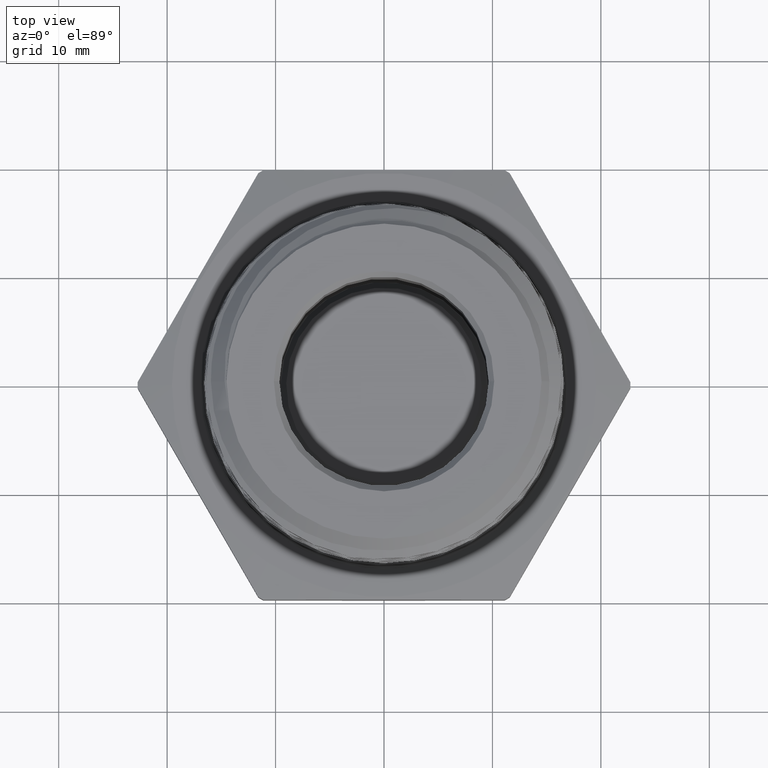
[diagram: clean part render]
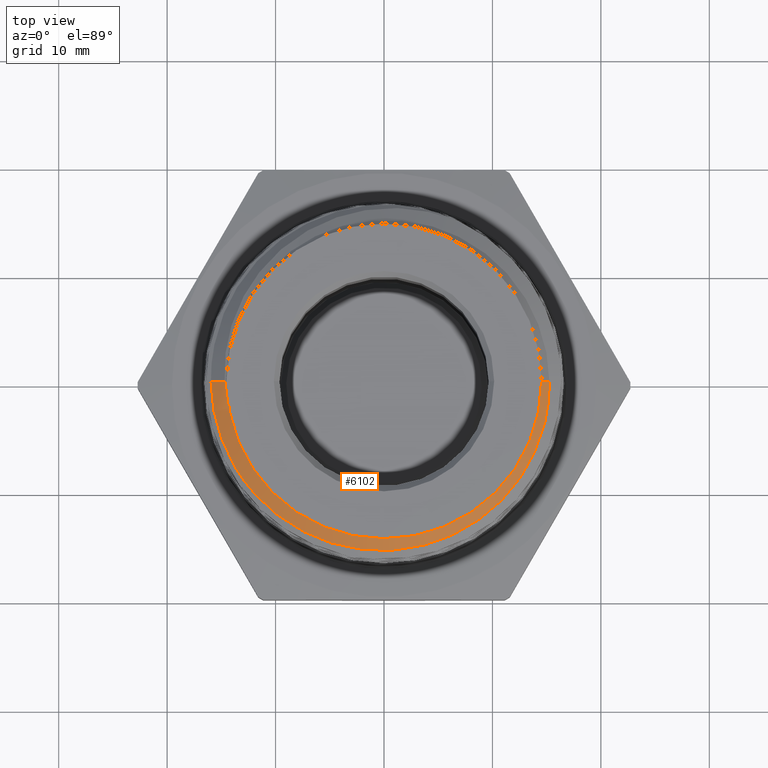
[diagram: same view with one face highlighted and labeled with its STEP entity id]
A machine part, top view. The second image highlights one B-rep face of the part: STEP entity #6102.
In plain terms, the highlighted conical surface has half-angle 45 deg.
Its self-contained STEP definition (entity closure, byte-faithful):
#11 = EDGE_CURVE ( 'NONE', #5243, #5248, #5406, .T. ) ;
#12 = EDGE_CURVE ( 'NONE', #5248, #4804, #5407, .T. ) ;
#13 = EDGE_CURVE ( 'NONE', #4804, #4803, #5626, .T. ) ;
#14 = EDGE_CURVE ( 'NONE', #4803, #5237, #5408, .T. ) ;
#76 = AXIS2_PLACEMENT_3D ( 'NONE', #3237, #3238, #3239 ) ;
#81 = AXIS2_PLACEMENT_3D ( 'NONE', #3249, #3250, #3248 ) ;
#3174 = CARTESIAN_POINT ( 'NONE',  ( 0.6592028279056124700, 8.072906331834918300E-017, 0.9027971720943887000 ) ) ;
#3178 = DIRECTION ( 'NONE',  ( 0.7071067811865516800, 8.659560562354983400E-017, -0.7071067811865433500 ) ) ;
#3232 = CARTESIAN_POINT ( 'NONE',  ( -0.6592028279056124700, 0.0000000000000000000, 0.9027971720943887000 ) ) ;
#3233 = DIRECTION ( 'NONE',  ( -0.7071067811865516800, 0.0000000000000000000, -0.7071067811865433500 ) ) ;
#3237 = CARTESIAN_POINT ( 'NONE',  ( 0.0000000000000000000, 0.0000000000000000000, 0.9900000000000001000 ) ) ;
#3238 = DIRECTION ( 'NONE',  ( -0.0000000000000000000, -0.0000000000000000000, -1.000000000000000000 ) ) ;
#3239 = DIRECTION ( 'NONE',  ( -1.000000000000000000, 0.0000000000000000000, 0.0000000000000000000 ) ) ;
#3248 = DIRECTION ( 'NONE',  ( -1.000000000000000000, 0.0000000000000000000, 0.0000000000000000000 ) ) ;
#3249 = CARTESIAN_POINT ( 'NONE',  ( 0.0000000000000000000, 0.0000000000000000000, 0.9027971720943887000 ) ) ;
#3250 = DIRECTION ( 'NONE',  ( -0.0000000000000000000, -0.0000000000000000000, -1.000000000000000000 ) ) ;
#4396 = CARTESIAN_POINT ( 'NONE',  ( -0.6283225450993632500, 4.889100257645358200E-013, 0.9336774549006376900 ) ) ;
#4397 = CARTESIAN_POINT ( 'NONE',  ( -0.5782752292204644800, 3.274842165956694300E-013, 0.9837247707795356800 ) ) ;
#4417 = CARTESIAN_POINT ( 'NONE',  ( -0.5719999999999999500, 0.0000000000000000000, 0.9900000000000001000 ) ) ;
#4522 = CARTESIAN_POINT ( 'NONE',  ( 0.6003489249177894600, 1.451294246634139900E-016, 0.9616510750822108200 ) ) ;
#4528 = CARTESIAN_POINT ( 'NONE',  ( -0.5731157824945870600, -6.829619984160658000E-017, 0.9888842175054131100 ) ) ;
#4532 = CARTESIAN_POINT ( 'NONE',  ( -0.5655597257416159500, -0.09229614794504099900, 0.9889424822193903000 ) ) ;
#4533 = CARTESIAN_POINT ( 'NONE',  ( 0.5719999999999999500, 7.351925070738971400E-017, 0.9900000000000001000 ) ) ;
#4803 = VERTEX_POINT ( 'NONE', #4396 ) ;
#4804 = VERTEX_POINT ( 'NONE', #4397 ) ;
#4828 = VERTEX_POINT ( 'NONE', #4417 ) ;
#4843 = CARTESIAN_POINT ( 'NONE',  ( 0.5401240285679728100, -0.2722155197896946600, 0.9574951859203398900 ) ) ;
#4846 = CARTESIAN_POINT ( 'NONE',  ( 0.5212408773791733500, -0.3079999082411661900, 0.9568993385211090900 ) ) ;
#4847 = CARTESIAN_POINT ( 'NONE',  ( -0.5655597257416159500, -0.09229614794504099900, 0.9889424822193903000 ) ) ;
#4848 = CARTESIAN_POINT ( 'NONE',  ( 0.4775363340974049200, -0.3757079295430516000, 0.9557143765499325200 ) ) ;
#4851 = CARTESIAN_POINT ( 'NONE',  ( 0.5999430441952849900, -0.04002742803732141400, 0.9610587070802366600 ) ) ;
#4869 = CARTESIAN_POINT ( 'NONE',  ( 0.3632812365888853400, -0.4887551486029252400, 0.9533561508519838900 ) ) ;
#4872 = CARTESIAN_POINT ( 'NONE',  ( 0.3471400199447933800, -0.5006996237951748500, 0.9530619889598985800 ) ) ;
#4873 = CARTESIAN_POINT ( 'NONE',  ( 0.2971599183001757400, -0.5340163965697475300, 0.9521850222044375700 ) ) ;
#4874 = CARTESIAN_POINT ( 'NONE',  ( 0.2617832771830060400, -0.5529020988062806100, 0.9516015158549676600 ) ) ;
#4875 = CARTESIAN_POINT ( 'NONE',  ( 0.1867641360576282100, -0.5837751543597535800, 0.9504205957239932900 ) ) ;
#4877 = CARTESIAN_POINT ( 'NONE',  ( 0.1482344998597494300, -0.5952914823425052800, 0.9498370897720902500 ) ) ;
#4878 = CARTESIAN_POINT ( 'NONE',  ( 0.08930889642799251500, -0.6068242229662997900, 0.9489655639770608900 ) ) ;
#4880 = CARTESIAN_POINT ( 'NONE',  ( 0.008969497855853884200, -0.6144711064270760300, 0.9477939790444797100 ) ) ;
#4882 = CARTESIAN_POINT ( 'NONE',  ( 0.06945847677377128800, -0.6097120950829849600, 0.9486752682305792400 ) ) ;
#4885 = CARTESIAN_POINT ( 'NONE',  ( 0.02933292363915321000, -0.6135398422460876000, 0.9480900178801529000 ) ) ;
#4887 = CARTESIAN_POINT ( 'NONE',  ( -0.05149637765103493700, -0.6142455323130711100, 0.9469188464212261500 ) ) ;
#4888 = CARTESIAN_POINT ( 'NONE',  ( -0.09131615818067843900, -0.6101697598103221800, 0.9463412480107562500 ) ) ;
#4889 = CARTESIAN_POINT ( 'NONE',  ( -0.2831535357971130500, -0.5514069717100009700, 0.9434394358872902900 ) ) ;
#4890 = CARTESIAN_POINT ( 'NONE',  ( -0.2276288004169043100, -0.5745728427568093100, 0.9443053165515037400 ) ) ;
#4891 = CARTESIAN_POINT ( 'NONE',  ( 0.5486010273752650600, -0.2539835445915285000, 0.9577902505720044000 ) ) ;
#4894 = CARTESIAN_POINT ( 'NONE',  ( -0.2086836797568140100, -0.5814206918121025400, 0.9445962341854583500 ) ) ;
#4895 = CARTESIAN_POINT ( 'NONE',  ( -0.1698892500044929500, -0.5933072999798104700, 0.9451820199975598000 ) ) ;
#4900 = CARTESIAN_POINT ( 'NONE',  ( -0.1503206900693071200, -0.5982578054319680500, 0.9454724724592916700 ) ) ;
#4901 = CARTESIAN_POINT ( 'NONE',  ( -0.3184373044608940800, -0.5324963997328851000, 0.9428650624131592600 ) ) ;
#4902 = CARTESIAN_POINT ( 'NONE',  ( -0.4735669051513986500, -0.4052717388882170500, 0.9399795319078251300 ) ) ;
#4903 = CARTESIAN_POINT ( 'NONE',  ( -0.4310758478532671900, -0.4476774968469090500, 0.9408388337412817400 ) ) ;
#4905 = CARTESIAN_POINT ( 'NONE',  ( -0.4162177585189503200, -0.4611418698714280800, 0.9411268315815684000 ) ) ;
#4909 = CARTESIAN_POINT ( 'NONE',  ( -0.3850861814524175800, -0.4867031851660277300, 0.9417050683721117600 ) ) ;
#4910 = CARTESIAN_POINT ( 'NONE',  ( -0.3687243612530555200, -0.4988518635010286700, 0.9419966363922802600 ) ) ;
#4911 = CARTESIAN_POINT ( 'NONE',  ( -0.4991859951343421400, -0.3742739245220261200, 0.9394059372103531500 ) ) ;
#4912 = CARTESIAN_POINT ( 'NONE',  ( -0.5444854407597128400, -0.3069957986819965000, 0.9382480025577218900 ) ) ;
#4913 = CARTESIAN_POINT ( 'NONE',  ( -0.6109628710005126100, -0.1393376951686272900, 0.9356739183522397900 ) ) ;
#4914 = CARTESIAN_POINT ( 'NONE',  ( -0.6058293096666629300, -0.1590543596057640600, 0.9359641750060452300 ) ) ;
#4915 = CARTESIAN_POINT ( 'NONE',  ( -0.5937880551024601300, -0.1975470601095116500, 0.9365381644293958600 ) ) ;
#4916 = CARTESIAN_POINT ( 'NONE',  ( -0.5868766730029038000, -0.2163859120718204500, 0.9368227733415663800 ) ) ;
#4917 = CARTESIAN_POINT ( 'NONE',  ( -0.5635223193491112300, -0.2717036580411111300, 0.9376778298871607500 ) ) ;
#4921 = CARTESIAN_POINT ( 'NONE',  ( -0.6283225450993632500, 4.889100257645358200E-013, 0.9336774549006376900 ) ) ;
#4923 = DIRECTION ( 'NONE',  ( -0.7071067811865516800, 0.0000000000000000000, -0.7071067811865433500 ) ) ;
#4924 = CARTESIAN_POINT ( 'NONE',  ( -0.5782752292204644800, 3.274842165956694300E-013, 0.9837247707795356800 ) ) ;
#4925 = CARTESIAN_POINT ( 'NONE',  ( -0.5765482343063121900, -0.03095631150653007200, 0.9854517656937050700 ) ) ;
#4926 = CARTESIAN_POINT ( 'NONE',  ( -0.5705498541855826800, -0.06177772625082907800, 0.9889490450932201200 ) ) ;
#4927 = CARTESIAN_POINT ( 'NONE',  ( -0.6592028279056124700, 0.0000000000000000000, 0.9027971720943887000 ) ) ;
#4928 = CARTESIAN_POINT ( 'NONE',  ( -0.5655597257416159500, -0.09229614794504099900, 0.9889424822193903000 ) ) ;
#4929 = CARTESIAN_POINT ( 'NONE',  ( 0.5825591086343406800, -0.1598555971027429700, 0.9592651233446652900 ) ) ;
#4930 = CARTESIAN_POINT ( 'NONE',  ( -0.5723509295740142300, -0.06172517563396518600, 0.9871798708326929800 ) ) ;
#4931 = CARTESIAN_POINT ( 'NONE',  ( -0.6233480830329842800, -0.08014557814971741400, 0.9348149424751737200 ) ) ;
#4932 = CARTESIAN_POINT ( 'NONE',  ( -0.6277517758621205000, -0.04027582084508028000, 0.9342482241379113100 ) ) ;
#4933 = CARTESIAN_POINT ( 'NONE',  ( -0.5731157824945870600, -6.829619984160658000E-017, 0.9888842175054131100 ) ) ;
#4938 = CARTESIAN_POINT ( 'NONE',  ( -0.5730966348480071000, -0.03089783283064946900, 0.9889033651519929500 ) ) ;
#4940 = CARTESIAN_POINT ( 'NONE',  ( 0.4095851848782859400, -0.4494567421635380400, 0.9542447393142987600 ) ) ;
#4941 = CARTESIAN_POINT ( 'NONE',  ( 0.3945002952905766200, -0.4631467876590779600, 0.9539474423492890800 ) ) ;
#4942 = CARTESIAN_POINT ( 'NONE',  ( 0.4522186291113682300, -0.4067070071224666000, 0.9551288779894889800 ) ) ;
#4943 = CARTESIAN_POINT ( 'NONE',  ( 0.6006457612034898900, -0.02001344833518966400, 0.9613542387965097200 ) ) ;
#4944 = CARTESIAN_POINT ( 'NONE',  ( 0.5965234745108127800, -0.08005636094699747400, 0.9604637476984313500 ) ) ;
#4950 = CARTESIAN_POINT ( 'NONE',  ( 0.6003489249177894600, 1.451294246634139900E-016, 0.9616510750822108200 ) ) ;
#4952 = CARTESIAN_POINT ( 'NONE',  ( 0.5937895112420769100, -0.1001582436748685600, 0.9601630132861210800 ) ) ;
#4953 = CARTESIAN_POINT ( 'NONE',  ( 0.5712131112562398600, -0.1982947693048954500, 0.9586758693884432900 ) ) ;
#4954 = CARTESIAN_POINT ( 'NONE',  ( 0.5108653987641950100, -0.3254682437435796300, 0.9565999273501776300 ) ) ;
#5237 = VERTEX_POINT ( 'NONE', #4522 ) ;
#5243 = VERTEX_POINT ( 'NONE', #4528 ) ;
#5248 = VERTEX_POINT ( 'NONE', #4532 ) ;
#5249 = VERTEX_POINT ( 'NONE', #4533 ) ;
#5406 = B_SPLINE_CURVE_WITH_KNOTS ( 'NONE', 3,
 ( #4933, #4938, #4926, #4928 ),
 .UNSPECIFIED., .F., .F.,
 ( 4, 4 ),
 ( 0.001243514361745723700, 0.003600094283176836000 ),
 .UNSPECIFIED. ) ;
#5407 = B_SPLINE_CURVE_WITH_KNOTS ( 'NONE', 3,
 ( #4847, #4930, #4925, #4924 ),
 .UNSPECIFIED., .F., .F.,
 ( 4, 4 ),
 ( 0.0000000000000000000, 0.002365730230864626400 ),
 .UNSPECIFIED. ) ;
#5408 = B_SPLINE_CURVE_WITH_KNOTS ( 'NONE', 3,
 ( #4921, #4932, #4931, #4913, #4914, #4915, #4916, #4917, #4912, #4911, #4902, #4903, #4905, #4909, #4910, #4901, #4889, #4890, #4894, #4895, #4900, #4888, #4887, #4880, #4885, #4882, #4878, #4877, #4875, #4874, #4873, #4872, #4869, #4941, #4940, #4942, #4848, #4954, #4846, #4843, #4891, #4953, #4929, #4952, #4944, #4851, #4943, #4950 ),
 .UNSPECIFIED., .F., .F.,
 ( 4, 2, 2, 2, 2, 2, 2, 2, 2, 2, 2, 2, 2, 2, 2, 2, 2, 2, 2, 2, 2, 2, 2, 4 ),
 ( 0.02647951359839895500, 0.02954731246858487800, 0.03108121190367784200, 0.03261511133877080500, 0.03568291020895673200, 0.03875070907914265900, 0.04028460851423562600, 0.04181850794932858600, 0.04488630681951451300, 0.04642020625460748000, 0.04795410568970043900, 0.05102190455988636600, 0.05255580399497932600, 0.05408970343007228600, 0.05715750230025820600, 0.06022530117044412600, 0.06175920060553709300, 0.06329310004063006000, 0.06636089891081598000, 0.06789479834590893300, 0.06942869778100191300, 0.07249649665118783300, 0.07403039608628080000, 0.07556429552137376700 ),
 .UNSPECIFIED. ) ;
#5626 = LINE ( 'NONE', #4927, #5627 ) ;
#5627 = VECTOR ( 'NONE', #4923, 39.37007874015748100 ) ;
#5726 = LINE ( 'NONE', #3174, #5729 ) ;
#5728 = LINE ( 'NONE', #3232, #5731 ) ;
#5729 = VECTOR ( 'NONE', #3178, 39.37007874015748100 ) ;
#5730 = CIRCLE ( 'NONE', #76, 0.5719999999999999500 ) ;
#5731 = VECTOR ( 'NONE', #3233, 39.37007874015748100 ) ;
#5741 = FACE_OUTER_BOUND ( 'NONE', #6068, .T. ) ;
#5746 = CONICAL_SURFACE ( 'NONE', #81, 0.6592028279056124700, 0.7853981633974541600 ) ;
#5822 = EDGE_CURVE ( 'NONE', #5249, #5237, #5726, .T. ) ;
#5825 = EDGE_CURVE ( 'NONE', #4828, #5243, #5728, .T. ) ;
#5826 = EDGE_CURVE ( 'NONE', #5249, #4828, #5730, .T. ) ;
#5866 = ORIENTED_EDGE ( 'NONE', *, *, #5822, .F. ) ;
#5867 = ORIENTED_EDGE ( 'NONE', *, *, #5826, .T. ) ;
#5868 = ORIENTED_EDGE ( 'NONE', *, *, #5825, .T. ) ;
#5869 = ORIENTED_EDGE ( 'NONE', *, *, #11, .T. ) ;
#5870 = ORIENTED_EDGE ( 'NONE', *, *, #12, .T. ) ;
#5871 = ORIENTED_EDGE ( 'NONE', *, *, #13, .T. ) ;
#5872 = ORIENTED_EDGE ( 'NONE', *, *, #14, .T. ) ;
#6068 = EDGE_LOOP ( 'NONE', ( #5866, #5867, #5868, #5869, #5870, #5871, #5872 ) ) ;
#6102 = ADVANCED_FACE ( 'NONE', ( #5741 ), #5746, .T. ) ;